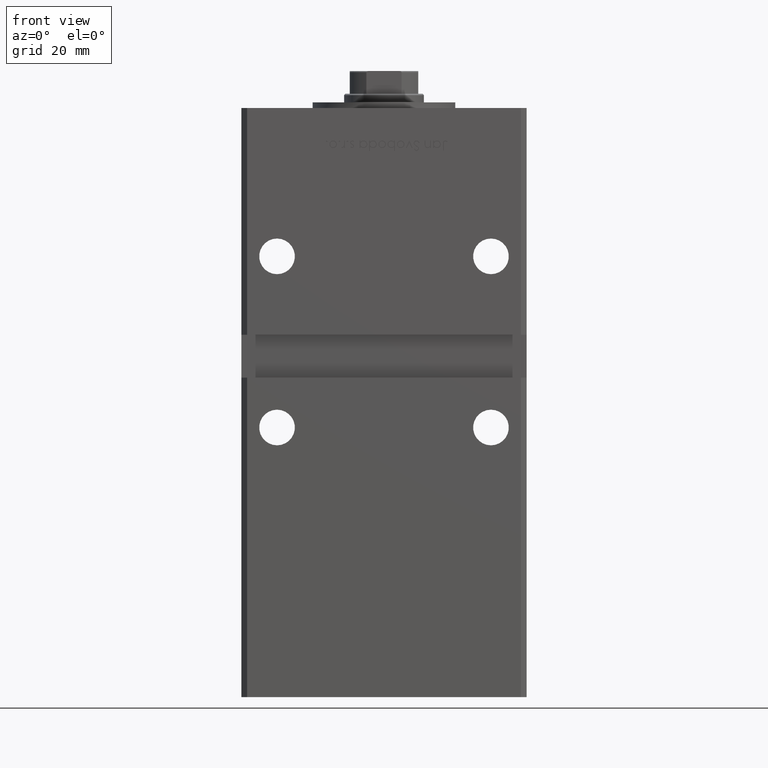
[diagram: clean part render]
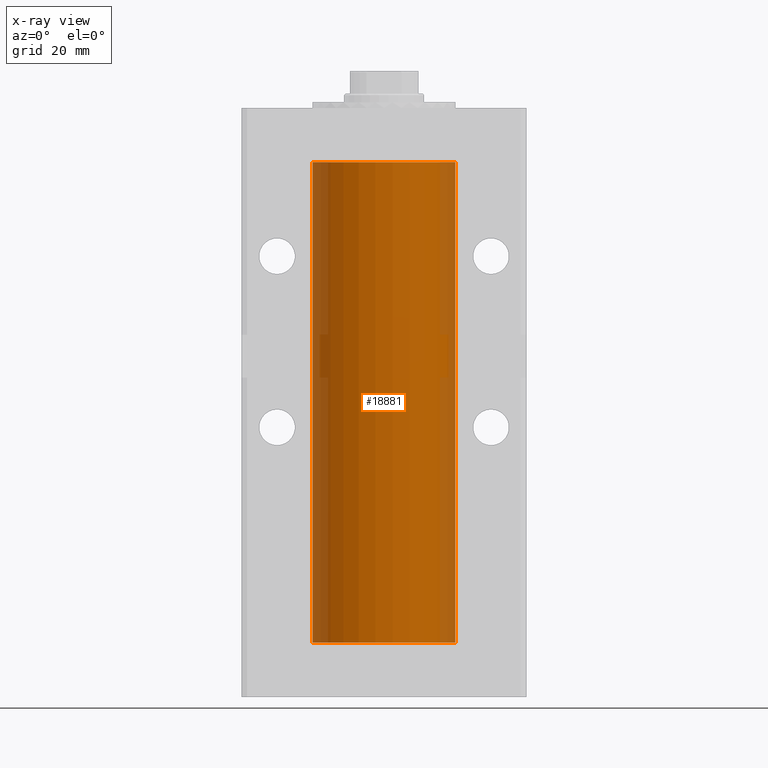
[diagram: x-ray — body ghosted, one internal face saturated and labeled with its STEP entity id]
A machine part, front view, then the same camera in x-ray: the body is ghosted and one INTERNAL B-rep face — a face not visible from any outside direction — is saturated and labeled: STEP entity #18881.
In plain terms, the highlighted cylindrical surface (partial cylindrical patch) has radius 25 mm, axis along (-0, -0, -1).
Its self-contained STEP definition (entity closure, byte-faithful):
#938 = DIRECTION ( 'NONE',  ( 1.000000000000000000, 0.000000000000000000, 0.000000000000000000 ) ) ;
#2455 = LINE ( 'NONE', #46878, #4027 ) ;
#3092 = CARTESIAN_POINT ( 'NONE',  ( -25.00000000000000000, 0.000000000000000000, 168.5000000000000000 ) ) ;
#4027 = VECTOR ( 'NONE', #18361, 1000.000000000000000 ) ;
#5750 = LINE ( 'NONE', #39362, #18697 ) ;
#6018 = CARTESIAN_POINT ( 'NONE',  ( 0.000000000000000000, 0.000000000000000000, 0.000000000000000000 ) ) ;
#9819 = CARTESIAN_POINT ( 'NONE',  ( 25.00000000000000000, 3.061616997868383043E-15, 0.000000000000000000 ) ) ;
#11007 = CIRCLE ( 'NONE', #41094, 25.00000000000000000 ) ;
#11238 = AXIS2_PLACEMENT_3D ( 'NONE', #6018, #22434, #938 ) ;
#11653 = DIRECTION ( 'NONE',  ( -0.000000000000000000, -0.000000000000000000, -1.000000000000000000 ) ) ;
#12562 = DIRECTION ( 'NONE',  ( 1.000000000000000000, 0.000000000000000000, 0.000000000000000000 ) ) ;
#13099 = CARTESIAN_POINT ( 'NONE',  ( 0.000000000000000000, 0.000000000000000000, 168.5000000000000000 ) ) ;
#13866 = ORIENTED_EDGE ( 'NONE', *, *, #25481, .F. ) ;
#14833 = ORIENTED_EDGE ( 'NONE', *, *, #27645, .T. ) ;
#15694 = CARTESIAN_POINT ( 'NONE',  ( 0.000000000000000000, 0.000000000000000000, 168.5000000000000000 ) ) ;
#18361 = DIRECTION ( 'NONE',  ( -0.000000000000000000, -0.000000000000000000, -1.000000000000000000 ) ) ;
#18697 = VECTOR ( 'NONE', #51479, 1000.000000000000000 ) ;
#18881 = ADVANCED_FACE ( 'NONE', ( #44200 ), #23752, .F. ) ;
#22204 = VERTEX_POINT ( 'NONE', #42016 ) ;
#22434 = DIRECTION ( 'NONE',  ( -0.000000000000000000, 0.000000000000000000, 1.000000000000000000 ) ) ;
#23752 = CYLINDRICAL_SURFACE ( 'NONE', #30464, 25.00000000000000000 ) ;
#25306 = VERTEX_POINT ( 'NONE', #9819 ) ;
#25481 = EDGE_CURVE ( 'NONE', #28376, #22204, #2455, .T. ) ;
#27645 = EDGE_CURVE ( 'NONE', #41781, #25306, #5750, .T. ) ;
#28376 = VERTEX_POINT ( 'NONE', #3092 ) ;
#28962 = DIRECTION ( 'NONE',  ( -0.000000000000000000, 0.000000000000000000, 1.000000000000000000 ) ) ;
#29445 = EDGE_CURVE ( 'NONE', #28376, #41781, #11007, .T. ) ;
#29544 = EDGE_LOOP ( 'NONE', ( #53090, #14833, #45273, #13866 ) ) ;
#30464 = AXIS2_PLACEMENT_3D ( 'NONE', #15694, #11653, #35592 ) ;
#34440 = CIRCLE ( 'NONE', #11238, 25.00000000000000000 ) ;
#35592 = DIRECTION ( 'NONE',  ( -1.000000000000000000, 0.000000000000000000, 0.000000000000000000 ) ) ;
#39362 = CARTESIAN_POINT ( 'NONE',  ( 25.00000000000000000, 3.061616997868383043E-15, 168.5000000000000000 ) ) ;
#40574 = CARTESIAN_POINT ( 'NONE',  ( 25.00000000000000000, 3.061616997868383043E-15, 168.5000000000000000 ) ) ;
#41094 = AXIS2_PLACEMENT_3D ( 'NONE', #13099, #28962, #12562 ) ;
#41098 = EDGE_CURVE ( 'NONE', #22204, #25306, #34440, .T. ) ;
#41781 = VERTEX_POINT ( 'NONE', #40574 ) ;
#42016 = CARTESIAN_POINT ( 'NONE',  ( -25.00000000000000000, 0.000000000000000000, 0.000000000000000000 ) ) ;
#44200 = FACE_OUTER_BOUND ( 'NONE', #29544, .T. ) ;
#45273 = ORIENTED_EDGE ( 'NONE', *, *, #41098, .F. ) ;
#46878 = CARTESIAN_POINT ( 'NONE',  ( -25.00000000000000000, 0.000000000000000000, 168.5000000000000000 ) ) ;
#51479 = DIRECTION ( 'NONE',  ( -0.000000000000000000, -0.000000000000000000, -1.000000000000000000 ) ) ;
#53090 = ORIENTED_EDGE ( 'NONE', *, *, #29445, .T. ) ;